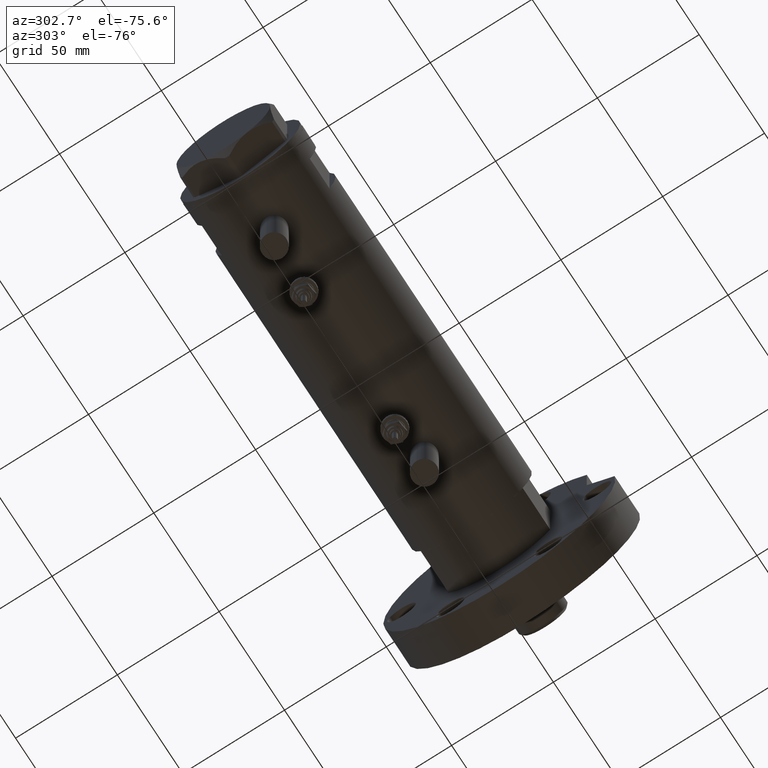
[diagram: clean part render]
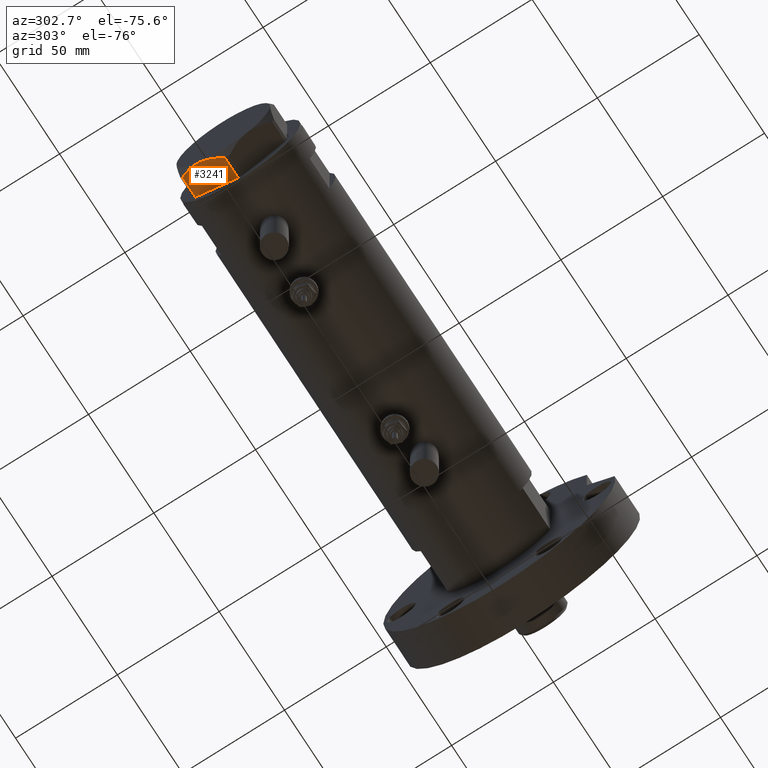
[diagram: same view with one face highlighted and labeled with its STEP entity id]
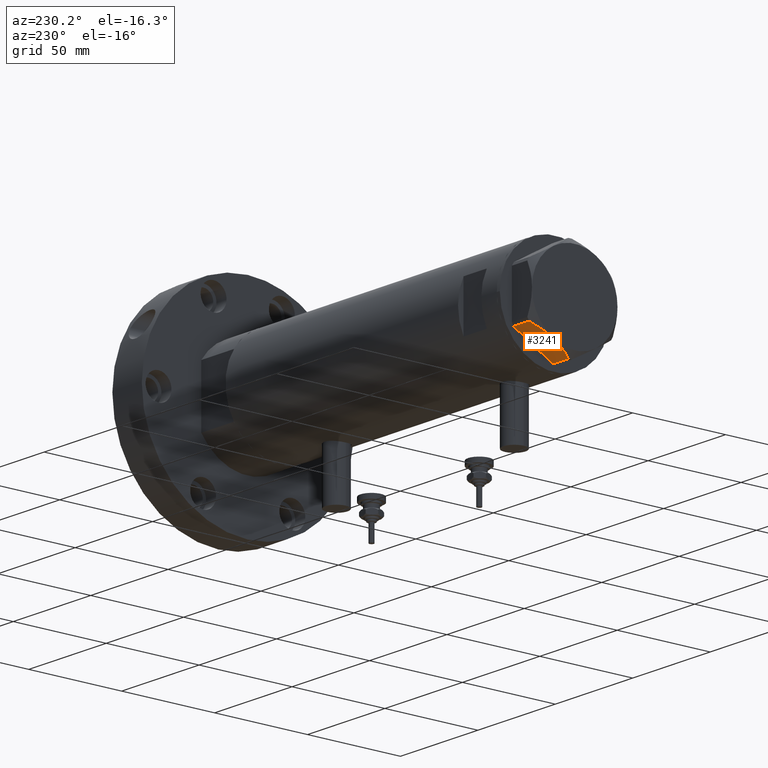
[diagram: same view with one face highlighted and labeled with its STEP entity id]
A machine part, auxiliary view. The second image highlights one B-rep face of the part: STEP entity #3241.
A second angle (auxiliary view) of the same face is appended — the face is thin or edge-on in the first view.
In plain terms, the highlighted planar face has unit normal (0, -0.5, 0.866).
Its self-contained STEP definition (entity closure, byte-faithful):
#134 = CARTESIAN_POINT ( 'NONE',  ( 0.9699484522385838359, 25.99811238272274139, 9.983800287807635954 ) ) ;
#309 = EDGE_LOOP ( 'NONE', ( #4123, #3106, #1445, #2365, #3127 ) ) ;
#460 = CARTESIAN_POINT ( 'NONE',  ( 13.80210138309696788, 18.58946543380931260, 12.85271263895571181 ) ) ;
#534 = CARTESIAN_POINT ( 'NONE',  ( 13.34348161667004362, 18.85424967941157703, 12.90784227772834392 ) ) ;
#636 = CARTESIAN_POINT ( 'NONE',  ( 4.357207709416042185, 24.04247733877631887, 11.57055225522968378 ) ) ;
#669 = DIRECTION ( 'NONE',  ( -0.4999999999999948930, -0.8660254037844415942, 0.000000000000000000 ) ) ;
#713 = DIRECTION ( 'NONE',  ( 0.000000000000000000, 0.000000000000000000, -1.000000000000000000 ) ) ;
#1002 = PLANE ( 'NONE',  #5765 ) ;
#1152 = EDGE_CURVE ( 'NONE', #4409, #3763, #5932, .T. ) ;
#1337 = DIRECTION ( 'NONE',  ( -0.8660254037844415942, 0.4999999999999949485, 0.000000000000000000 ) ) ;
#1369 = LINE ( 'NONE', #7137, #5948 ) ;
#1445 = ORIENTED_EDGE ( 'NONE', *, *, #4739, .T. ) ;
#1536 = FACE_OUTER_BOUND ( 'NONE', #309, .T. ) ;
#1614 = DIRECTION ( 'NONE',  ( 0.8660254037844415942, -0.4999999999999948930, 0.000000000000000000 ) ) ;
#1681 = CARTESIAN_POINT ( 'NONE',  ( 15.16323225988329604, 17.80361615569442790, 12.63731396715686728 ) ) ;
#1863 = CARTESIAN_POINT ( 'NONE',  ( 1.799196345396830266, 25.51934588838290452, 10.43131750950938930 ) ) ;
#1903 = CARTESIAN_POINT ( 'NONE',  ( 22.99999999999981171, 13.27905619136164184, 0.000000000000000000 ) ) ;
#2178 = CARTESIAN_POINT ( 'NONE',  ( 22.03005154776139207, 13.83905619136154463, 9.983800287807527596 ) ) ;
#2365 = ORIENTED_EDGE ( 'NONE', *, *, #1152, .T. ) ;
#2787 = CARTESIAN_POINT ( 'NONE',  ( 20.37350567916420374, 14.79546339452108228, 10.87778242614341728 ) ) ;
#2826 = CARTESIAN_POINT ( 'NONE',  ( 11.95865151389051384, 19.65378171203322921, 13.00000000000000355 ) ) ;
#3012 = CARTESIAN_POINT ( 'NONE',  ( 0.9699484522385886098, 25.99811238272273783, 13.00000000000000000 ) ) ;
#3082 = VERTEX_POINT ( 'NONE', #5853 ) ;
#3106 = ORIENTED_EDGE ( 'NONE', *, *, #6939, .T. ) ;
#3127 = ORIENTED_EDGE ( 'NONE', *, *, #4973, .F. ) ;
#3241 = ADVANCED_FACE ( 'NONE', ( #1536 ), #1002, .F. ) ;
#3281 = CARTESIAN_POINT ( 'NONE',  ( 0.9699484522385886098, 25.99811238272273783, 0.000000000000000000 ) ) ;
#3323 = CARTESIAN_POINT ( 'NONE',  ( 18.67981377008996802, 15.77331687414936567, 11.62937486882604965 ) ) ;
#3391 = B_SPLINE_CURVE_WITH_KNOTS ( 'NONE', 3,
 ( #3610, #6490, #4804, #4106, #4225, #636, #3578, #7569, #1863, #134 ),
 .UNSPECIFIED., .F., .F.,
 ( 4, 2, 2, 2, 4 ),
 ( 0.01376519981810293836, 0.01998941321701560442, 0.02154546656674377267, 0.02310151991647194092, 0.02621362661592828089 ),
 .UNSPECIFIED. ) ;
#3556 = VECTOR ( 'NONE', #1337, 999.9999999999998863 ) ;
#3578 = CARTESIAN_POINT ( 'NONE',  ( 3.925137811030053214, 24.29193301091819279, 11.39727285399137813 ) ) ;
#3610 = CARTESIAN_POINT ( 'NONE',  ( 11.49999999999990408, 19.91858428704219364, 13.00000000000000000 ) ) ;
#3763 = VERTEX_POINT ( 'NONE', #7159 ) ;
#3946 = CARTESIAN_POINT ( 'NONE',  ( 11.49999999999990408, 19.91858428704219364, 13.00000000000000000 ) ) ;
#4106 = CARTESIAN_POINT ( 'NONE',  ( 5.671686373602804920, 23.28356272816407113, 12.04068176582928018 ) ) ;
#4123 = ORIENTED_EDGE ( 'NONE', *, *, #4599, .F. ) ;
#4224 = VERTEX_POINT ( 'NONE', #7035 ) ;
#4225 = CARTESIAN_POINT ( 'NONE',  ( 5.229981517798068857, 23.53858114556529912, 11.89212886775839451 ) ) ;
#4409 = VERTEX_POINT ( 'NONE', #3281 ) ;
#4599 = EDGE_CURVE ( 'NONE', #7515, #4224, #7341, .T. ) ;
#4739 = EDGE_CURVE ( 'NONE', #3082, #4409, #7141, .T. ) ;
#4804 = CARTESIAN_POINT ( 'NONE',  ( 7.884645426989624895, 22.00591022298558741, 12.70765172847692526 ) ) ;
#4973 = EDGE_CURVE ( 'NONE', #4224, #3763, #3391, .T. ) ;
#5126 = CARTESIAN_POINT ( 'NONE',  ( 22.99999999999981171, 13.27905619136164184, 13.00000000000000000 ) ) ;
#5361 = DIRECTION ( 'NONE',  ( 0.000000000000000000, 0.000000000000000000, 1.000000000000000000 ) ) ;
#5739 = CARTESIAN_POINT ( 'NONE',  ( 16.05322244309624224, 17.28978008384030929, 12.42689993760370015 ) ) ;
#5765 = AXIS2_PLACEMENT_3D ( 'NONE', #5126, #669, #1614 ) ;
#5853 = CARTESIAN_POINT ( 'NONE',  ( 22.03005154776124996, 13.83905619136162635, 0.000000000000000000 ) ) ;
#5932 = LINE ( 'NONE', #3012, #6472 ) ;
#5948 = VECTOR ( 'NONE', #713, 1000.000000000000000 ) ;
#6472 = VECTOR ( 'NONE', #5361, 1000.000000000000000 ) ;
#6490 = CARTESIAN_POINT ( 'NONE',  ( 9.678244919010090541, 20.97037507344921892, 13.00000000000000888 ) ) ;
#6848 = CARTESIAN_POINT ( 'NONE',  ( 12.41906678023027055, 19.38796083407295612, 12.98168640760940562 ) ) ;
#6939 = EDGE_CURVE ( 'NONE', #7515, #3082, #1369, .T. ) ;
#7035 = CARTESIAN_POINT ( 'NONE',  ( 11.49999999999990408, 19.91858428704219364, 13.00000000000000000 ) ) ;
#7137 = CARTESIAN_POINT ( 'NONE',  ( 22.03005154776124996, 13.83905619136162635, 13.00000000000000000 ) ) ;
#7141 = LINE ( 'NONE', #1903, #3556 ) ;
#7159 = CARTESIAN_POINT ( 'NONE',  ( 0.9699484522385838359, 25.99811238272274139, 9.983800287807635954 ) ) ;
#7289 = CARTESIAN_POINT ( 'NONE',  ( 22.03005154776139207, 13.83905619136154463, 9.983800287807527596 ) ) ;
#7341 = B_SPLINE_CURVE_WITH_KNOTS ( 'NONE', 3,
 ( #2178, #2787, #3323, #5739, #1681, #460, #534, #6848, #2826, #3946 ),
 .UNSPECIFIED., .F., .F.,
 ( 4, 2, 2, 2, 4 ),
 ( 0.001228959670438484414, 0.007497079744270713011, 0.01063113978118682308, 0.01219816979964488159, 0.01376519981810293836 ),
 .UNSPECIFIED. ) ;
#7515 = VERTEX_POINT ( 'NONE', #7289 ) ;
#7569 = CARTESIAN_POINT ( 'NONE',  ( 2.640413878806743053, 25.03366871902166935, 10.84420102443836598 ) ) ;